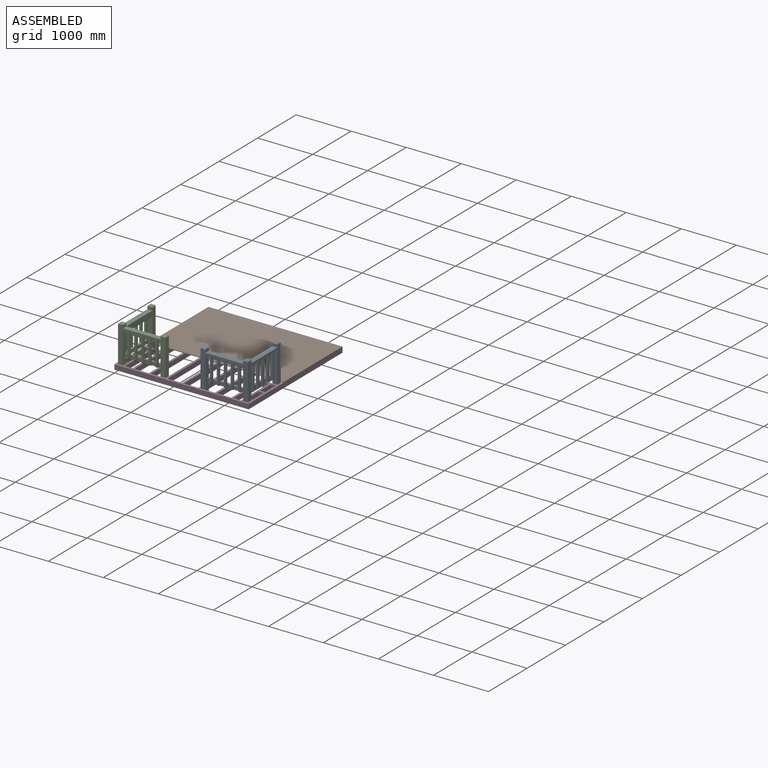
[diagram: assembled view]
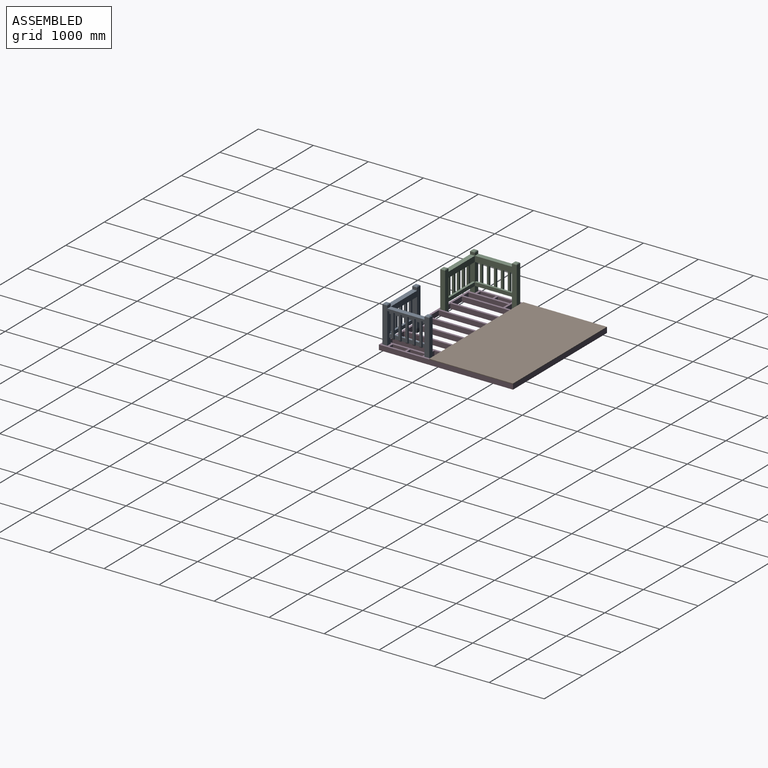
[diagram: assembled view, second angle]
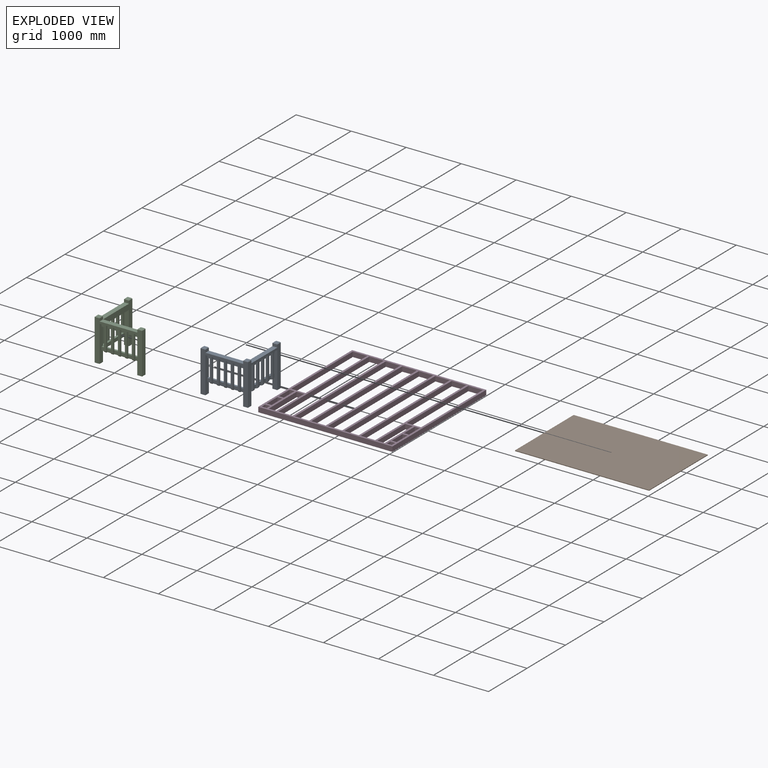
[diagram: exploded view]
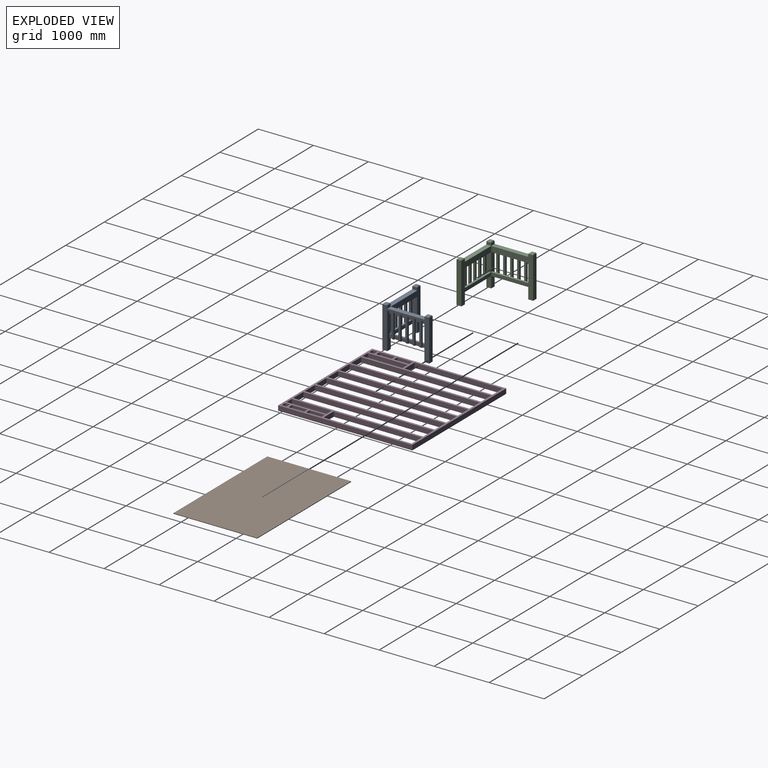
[diagram: exploded view, second angle]
ASSEMBLY  parts=4 mates=10
PART A: 116 faces, bbox 862x850.9x762 mm
  f0: plane 69.06x63.5mm, normal (0,-1,0), area 4385.1mm2, adj f25,f56,f58,f103
  f1: plane 69.06x63.5mm, normal (0,-1,0), area 4385.1mm2, adj f2,f25,f65,f103
  f2: plane 684.21x50.8mm, normal (0,0,-1), area 27499.9mm2, adj f1,f4,f6,f8,f10,f25,f28,f31
  f3: plane 88.9x63.5mm, normal (0,-1,0), area 5645.2mm2, adj f56,f58,f99,f104
  f4: plane 88.9x63.5mm, normal (0,-1,0), area 5645.1mm2, adj f2,f65,f99,f104
  f5: plane 88.9x63.5mm, normal (0,-1,0), area 5645.2mm2, adj f56,f58,f95,f100
  f6: plane 88.9x63.5mm, normal (0,-1,0), area 5645.2mm2, adj f2,f65,f95,f100
  f7: plane 88.9x63.5mm, normal (0,-1,0), area 5645.1mm2, adj f56,f58,f91,f96
  f8: plane 88.9x63.5mm, normal (0,-1,0), area 5645.1mm2, adj f2,f65,f91,f96
  f9: plane 88.9x63.5mm, normal (0,-1,0), area 5645.1mm2, adj f56,f58,f87,f92
  f10: plane 88.9x63.5mm, normal (0,-1,0), area 5645.1mm2, adj f2,f65,f87,f92
  f11: plane 63.5x63.5mm, normal (1,0,0), area 4032.3mm2, adj f13,f24,f63,f82
  f12: plane 88.9x63.5mm, normal (1,0,0), area 5645.2mm2, adj f59,f61,f78,f83
  f13: plane 673.1x50.8mm, normal (0,0,-1), area 26935.4mm2, adj f11,f14,f17,f19,f21,f23,f24,f33
  f14: plane 88.9x63.5mm, normal (1,0,0), area 5645.1mm2, adj f13,f63,f78,f83
  f15: plane 88.9x63.5mm, normal (1,0,0), area 5645.2mm2, adj f59,f61,f67,f79
  f16: plane 63.5x63.5mm, normal (1,0,0), area 4032.2mm2, adj f23,f59,f61,f74
  f17: plane 88.9x63.5mm, normal (1,0,0), area 5645.2mm2, adj f13,f63,f70,f75
  f18: plane 88.9x63.5mm, normal (1,0,0), area 5645.2mm2, adj f59,f61,f70,f75
  f19: plane 88.9x63.5mm, normal (1,0,0), area 5645.2mm2, adj f13,f63,f66,f71
  f20: plane 88.9x63.5mm, normal (1,0,0), area 5645.2mm2, adj f59,f61,f66,f71
  f21: plane 88.9x63.5mm, normal (1,0,0), area 5645.2mm2, adj f13,f63,f67,f79
  f22: plane 762x749.3mm, normal (-1,0,0), area 177741.6mm2, adj f24,f27,f30,f32,f34,f37,f47,f59
  f23: plane 660.4x88.9mm, normal (0,1,0), area 53870.9mm2, adj f13,f16,f31,f33,f36,f59,f61,f62
  f24: plane 660.4x88.9mm, normal (0,-1,0), area 53870.9mm2, adj f11,f13,f22,f33,f34,f59,f60,f61
  f25: plane 660.4x88.9mm, normal (1,0,0), area 53870.9mm2, adj f0,f1,f2,f28,f30,f35,f56,f58
  f26: plane 684.21x88.9mm, normal (0,0,1), area 60826.5mm2, adj f28,f30,f40,f42
  f27: plane 673.1x88.9mm, normal (0,0,1), area 59838.6mm2, adj f22,f33,f37,f39
  f28: plane 862.01x749.3mm, normal (0,-1,0), area 159294mm2, adj f2,f25,f26,f29,f31,f33,f35,f36
  f29: plane 749.3x88.9mm, normal (-1,0,0), area 66612.8mm2, adj f28,f30,f35,f54
  f30: plane 773.11x749.3mm, normal (0,1,0), area 179576.3mm2, adj f22,f25,f26,f29,f35,f42,f55,f56
  f31: plane 660.4x88.9mm, normal (-1,0,0), area 53870.9mm2, adj f2,f23,f28,f36,f56,f57,f58,f64
  f32: plane 749.3x88.9mm, normal (0,1,0), area 66612.8mm2, adj f22,f33,f34,f45
  f33: plane 850.9x749.3mm, normal (1,0,0), area 158870.7mm2, adj f13,f23,f24,f27,f28,f32,f34,f36
  f34: plane 88.9x88.9mm, normal (0,0,-1), area 7903.2mm2, adj f22,f24,f32,f33
  f35: plane 88.9x88.9mm, normal (0,0,-1), area 7903.2mm2, adj f25,f28,f29,f30
  f36: plane 88.9x88.9mm, normal (0,0,-1), area 7903.2mm2, adj f23,f28,f31,f33
  f37: plane 88.9x50.8mm, normal (0,-1,0), area 4516.1mm2, adj f22,f27,f33,f46
  f38: plane 63.5x63.5mm, normal (0,0,1), area 4032.3mm2, adj f44,f45,f46,f47
  f39: plane 88.9x50.8mm, normal (0,1,0), area 4516.1mm2, adj f27,f33,f40,f49
  f40: plane 88.9x50.8mm, normal (-1,0,0), area 4516.1mm2, adj f26,f28,f39,f51
  f41: plane 63.5x63.5mm, normal (0,0,1), area 4032.2mm2, adj f48,f49,f50,f51
  f42: plane 88.9x50.8mm, normal (1,0,0), area 4516.1mm2, adj f26,f28,f30,f53
  f43: plane 63.5x63.5mm, normal (0,0,1), area 4032.3mm2, adj f52,f53,f54,f55
  f44: plane 88.9x12.7mm, normal (0.71,0,0.71), area 1368.6mm2, adj f33,f38,f45,f46
  f45: plane 88.9x12.7mm, normal (0,0.71,0.71), area 1368.6mm2, adj f32,f38,f44,f47
  f46: plane 88.9x12.7mm, normal (0,-0.71,0.71), area 1368.6mm2, adj f37,f38,f44,f47
  f47: plane 88.9x12.7mm, normal (-0.71,0,0.71), area 1368.6mm2, adj f22,f38,f45,f46
  f48: plane 88.9x12.7mm, normal (0.71,0,0.71), area 1368.6mm2, adj f33,f41,f49,f50
  f49: plane 88.9x12.7mm, normal (0,0.71,0.71), area 1368.6mm2, adj f39,f41,f48,f51
  f50: plane 88.9x12.7mm, normal (0,-0.71,0.71), area 1368.6mm2, adj f28,f41,f48,f51
  f51: plane 88.9x12.7mm, normal (-0.71,0,0.71), area 1368.6mm2, adj f40,f41,f49,f50
  f52: plane 88.9x12.7mm, normal (0,-0.71,0.71), area 1368.6mm2, adj f28,f43,f53,f54
  f53: plane 88.9x12.7mm, normal (0.71,0,0.71), area 1368.6mm2, adj f42,f43,f52,f55
  f54: plane 88.9x12.7mm, normal (-0.71,0,0.71), area 1368.6mm2, adj f29,f43,f52,f55
  f55: plane 88.9x12.7mm, normal (0,0.71,0.71), area 1368.6mm2, adj f30,f43,f53,f54
  f56: plane 684.21x57.15mm, normal (0,0,-1), area 29697.5mm2, adj f0,f3,f5,f7,f9,f25,f30,f31
  f57: plane 69.06x63.5mm, normal (0,-1,0), area 4385.1mm2, adj f31,f56,f58,f88
  f58: plane 684.21x38.1mm, normal (0,0,1), area 26068.5mm2, adj f0,f3,f5,f7,f9,f25,f30,f31
  f59: plane 673.1x38.1mm, normal (0,0,1), area 25645.1mm2, adj f12,f15,f16,f18,f20,f22,f23,f24
  f60: plane 63.5x63.5mm, normal (1,0,0), area 4032.2mm2, adj f24,f59,f61,f82
  f61: plane 673.1x57.15mm, normal (0,0,-1), area 29274.1mm2, adj f12,f15,f16,f18,f20,f22,f23,f24
  f62: plane 63.5x63.5mm, normal (1,0,0), area 4032.3mm2, adj f13,f23,f63,f74
  f63: plane 673.1x38.1mm, normal (0,0,-1), area 25645.1mm2, adj f11,f14,f17,f19,f21,f22,f23,f24
  f64: plane 69.06x63.5mm, normal (0,-1,0), area 4385.1mm2, adj f2,f31,f65,f88
  f65: plane 684.21x38.1mm, normal (0,0,-1), area 26068.5mm2, adj f1,f4,f6,f8,f10,f25,f30,f31
  f66: plane 457.2x38.1mm, normal (0,-1,0), area 17237.9mm2, adj f13,f19,f20,f61,f68,f69,f113
  f67: plane 457.2x38.1mm, normal (0,1,0), area 17237.9mm2, adj f13,f15,f21,f61,f68,f69,f113
  f68: plane 438.15x38.1mm, normal (1,0,0), area 16693.5mm2, adj f13,f66,f67,f113
  f69: plane 330.2x38.1mm, normal (-1,0,0), area 12580.6mm2, adj f59,f63,f66,f67
  f70: plane 457.2x38.1mm, normal (0,-1,0), area 17237.9mm2, adj f13,f17,f18,f61,f72,f73,f112
  f71: plane 457.2x38.1mm, normal (0,1,0), area 17237.9mm2, adj f13,f19,f20,f61,f72,f73,f112
  f72: plane 438.15x38.1mm, normal (1,0,0), area 16693.5mm2, adj f13,f70,f71,f112
  f73: plane 330.2x38.1mm, normal (-1,0,0), area 12580.6mm2, adj f59,f63,f70,f71
  f74: plane 457.2x38.1mm, normal (0,-1,0), area 17237.9mm2, adj f13,f16,f61,f62,f76,f77,f111
  f75: plane 457.2x38.1mm, normal (0,1,0), area 17237.9mm2, adj f13,f17,f18,f61,f76,f77,f111
  f76: plane 438.15x38.1mm, normal (1,0,0), area 16693.5mm2, adj f13,f74,f75,f111
  f77: plane 330.2x38.1mm, normal (-1,0,0), area 12580.6mm2, adj f59,f63,f74,f75
  f78: plane 457.2x38.1mm, normal (0,1,0), area 17237.9mm2, adj f12,f13,f14,f61,f80,f81,f114
  f79: plane 457.2x38.1mm, normal (0,-1,0), area 17237.9mm2, adj f13,f15,f21,f61,f80,f81,f114
  f80: plane 438.15x38.1mm, normal (1,0,0), area 16693.5mm2, adj f13,f78,f79,f114
  f81: plane 330.2x38.1mm, normal (-1,0,0), area 12580.6mm2, adj f59,f63,f78,f79
  f82: plane 457.2x38.1mm, normal (0,1,0), area 17237.9mm2, adj f11,f13,f60,f61,f84,f85,f115
  f83: plane 457.2x38.1mm, normal (0,-1,0), area 17237.9mm2, adj f12,f13,f14,f61,f84,f85,f115
  f84: plane 438.15x38.1mm, normal (1,0,0), area 16693.5mm2, adj f13,f82,f83,f115
  f85: plane 330.2x38.1mm, normal (-1,0,0), area 12580.6mm2, adj f59,f63,f82,f83
  f86: plane 330.2x38.1mm, normal (0,1,0), area 12580.6mm2, adj f58,f65,f87,f88
  f87: plane 457.2x38.1mm, normal (-1,0,0), area 17237.9mm2, adj f2,f9,f10,f56,f86,f89,f110
  f88: plane 457.2x38.1mm, normal (1,0,0), area 17237.9mm2, adj f2,f56,f57,f64,f86,f89,f110
  f89: plane 438.15x38.1mm, normal (0,-1,0), area 16693.5mm2, adj f2,f87,f88,f110
  f90: plane 330.2x38.1mm, normal (0,1,0), area 12580.6mm2, adj f58,f65,f91,f92
  f91: plane 457.2x38.1mm, normal (-1,0,0), area 17237.9mm2, adj f2,f7,f8,f56,f90,f93,f109
  f92: plane 457.2x38.1mm, normal (1,0,0), area 17237.9mm2, adj f2,f9,f10,f56,f90,f93,f109
  f93: plane 438.15x38.1mm, normal (0,-1,0), area 16693.5mm2, adj f2,f91,f92,f109
  f94: plane 330.2x38.1mm, normal (0,1,0), area 12580.6mm2, adj f58,f65,f95,f96
  f95: plane 457.2x38.1mm, normal (-1,0,0), area 17237.9mm2, adj f2,f5,f6,f56,f94,f97,f108
  f96: plane 457.2x38.1mm, normal (1,0,0), area 17237.9mm2, adj f2,f7,f8,f56,f94,f97,f108
  f97: plane 438.15x38.1mm, normal (0,-1,0), area 16693.5mm2, adj f2,f95,f96,f108
  f98: plane 330.2x38.1mm, normal (0,1,0), area 12580.6mm2, adj f58,f65,f99,f100
  f99: plane 457.2x38.1mm, normal (-1,0,0), area 17237.9mm2, adj f2,f3,f4,f56,f98,f101,f107
  f100: plane 457.2x38.1mm, normal (1,0,0), area 17237.9mm2, adj f2,f5,f6,f56,f98,f101,f107
  f101: plane 438.15x38.1mm, normal (0,-1,0), area 16693.5mm2, adj f2,f99,f100,f107
  f102: plane 330.2x38.1mm, normal (0,1,0), area 12580.6mm2, adj f58,f65,f103,f104
  f103: plane 457.2x38.1mm, normal (-1,0,0), area 17237.9mm2, adj f0,f1,f2,f56,f102,f105,f106
  f104: plane 457.2x38.1mm, normal (1,0,0), area 17237.9mm2, adj f2,f3,f4,f56,f102,f105,f106
  f105: plane 438.15x38.1mm, normal (0,-1,0), area 16693.5mm2, adj f2,f103,f104,f106
  f106: plane 38.1x19.05mm, normal (0,-0.71,-0.71), area 1026.4mm2, adj f56,f103,f104,f105
  f107: plane 38.1x19.05mm, normal (0,-0.71,-0.71), area 1026.4mm2, adj f56,f99,f100,f101
  f108: plane 38.1x19.05mm, normal (0,-0.71,-0.71), area 1026.4mm2, adj f56,f95,f96,f97
  f109: plane 38.1x19.05mm, normal (0,-0.71,-0.71), area 1026.4mm2, adj f56,f91,f92,f93
  f110: plane 38.1x19.05mm, normal (0,-0.71,-0.71), area 1026.4mm2, adj f56,f87,f88,f89
  f111: plane 38.1x19.05mm, normal (0.71,0,-0.71), area 1026.4mm2, adj f61,f74,f75,f76
  f112: plane 38.1x19.05mm, normal (0.71,0,-0.71), area 1026.4mm2, adj f61,f70,f71,f72
  f113: plane 38.1x19.05mm, normal (0.71,0,-0.71), area 1026.4mm2, adj f61,f66,f67,f68
  f114: plane 38.1x19.05mm, normal (0.71,0,-0.71), area 1026.4mm2, adj f61,f78,f79,f80
  f115: plane 38.1x19.05mm, normal (0.71,0,-0.71), area 1026.4mm2, adj f61,f82,f83,f84
PART B: 6 faces, bbox 2438.4x1524x11.9 mm
  f0: plane 2438.4x11.91mm, normal (0,-1,0), area 29032.2mm2, adj f1,f3,f4,f5
  f1: plane 1524x11.91mm, normal (1,0,0), area 18145.1mm2, adj f0,f2,f4,f5
  f2: plane 2438.4x11.91mm, normal (0,1,0), area 29032.2mm2, adj f1,f3,f4,f5
  f3: plane 1524x11.91mm, normal (-1,0,0), area 18145.1mm2, adj f0,f2,f4,f5
  f4: plane 2438.4x1524mm, normal (0,0,1), area 3716121.6mm2, adj f0,f1,f2,f3
  f5: plane 2438.4x1524mm, normal (0,0,-1), area 3716121.6mm2, adj f0,f1,f2,f3
PART C: 116 faces, bbox 862x850.9x762 mm
  f0: plane 69.06x63.5mm, normal (0,-1,0), area 4385.1mm2, adj f25,f56,f58,f103
  f1: plane 69.06x63.5mm, normal (0,-1,0), area 4385.1mm2, adj f2,f25,f65,f103
  f2: plane 684.21x50.8mm, normal (0,0,-1), area 27499.9mm2, adj f1,f4,f6,f8,f10,f25,f28,f31
  f3: plane 88.9x63.5mm, normal (0,-1,0), area 5645.2mm2, adj f56,f58,f99,f104
  f4: plane 88.9x63.5mm, normal (0,-1,0), area 5645.2mm2, adj f2,f65,f99,f104
  f5: plane 88.9x63.5mm, normal (0,-1,0), area 5645.2mm2, adj f56,f58,f95,f100
  f6: plane 88.9x63.5mm, normal (0,-1,0), area 5645.2mm2, adj f2,f65,f95,f100
  f7: plane 88.9x63.5mm, normal (0,-1,0), area 5645.1mm2, adj f56,f58,f91,f96
  f8: plane 88.9x63.5mm, normal (0,-1,0), area 5645.1mm2, adj f2,f65,f91,f96
  f9: plane 88.9x63.5mm, normal (0,-1,0), area 5645.1mm2, adj f56,f58,f87,f92
  f10: plane 88.9x63.5mm, normal (0,-1,0), area 5645.1mm2, adj f2,f65,f87,f92
  f11: plane 63.5x63.5mm, normal (-1,0,0), area 4032.3mm2, adj f13,f24,f63,f82
  f12: plane 88.9x63.5mm, normal (-1,0,0), area 5645.2mm2, adj f59,f61,f78,f83
  f13: plane 673.1x50.8mm, normal (0,0,-1), area 26935.4mm2, adj f11,f14,f17,f19,f21,f23,f24,f33
  f14: plane 88.9x63.5mm, normal (-1,0,0), area 5645.1mm2, adj f13,f63,f78,f83
  f15: plane 88.9x63.5mm, normal (-1,0,0), area 5645.2mm2, adj f59,f61,f67,f79
  f16: plane 63.5x63.5mm, normal (-1,0,0), area 4032.2mm2, adj f23,f59,f61,f74
  f17: plane 88.9x63.5mm, normal (-1,0,0), area 5645.2mm2, adj f13,f63,f70,f75
  f18: plane 88.9x63.5mm, normal (-1,0,0), area 5645.2mm2, adj f59,f61,f70,f75
  f19: plane 88.9x63.5mm, normal (-1,0,0), area 5645.2mm2, adj f13,f63,f66,f71
  f20: plane 88.9x63.5mm, normal (-1,0,0), area 5645.2mm2, adj f59,f61,f66,f71
  f21: plane 88.9x63.5mm, normal (-1,0,0), area 5645.2mm2, adj f13,f63,f67,f79
  f22: plane 762x749.3mm, normal (1,0,0), area 177741.6mm2, adj f24,f27,f30,f32,f34,f37,f47,f59
  f23: plane 660.4x88.9mm, normal (0,1,0), area 53870.9mm2, adj f13,f16,f31,f33,f36,f59,f61,f62
  f24: plane 660.4x88.9mm, normal (0,-1,0), area 53870.9mm2, adj f11,f13,f22,f33,f34,f59,f60,f61
  f25: plane 660.4x88.9mm, normal (-1,0,0), area 53870.9mm2, adj f0,f1,f2,f28,f30,f35,f56,f58
  f26: plane 684.21x88.9mm, normal (0,0,1), area 60826.5mm2, adj f28,f30,f40,f42
  f27: plane 673.1x88.9mm, normal (0,0,1), area 59838.6mm2, adj f22,f33,f37,f39
  f28: plane 862.01x749.3mm, normal (0,-1,0), area 159294mm2, adj f2,f25,f26,f29,f31,f33,f35,f36
  f29: plane 749.3x88.9mm, normal (1,0,0), area 66612.8mm2, adj f28,f30,f35,f54
  f30: plane 773.11x749.3mm, normal (0,1,0), area 179576.3mm2, adj f22,f25,f26,f29,f35,f42,f55,f56
  f31: plane 660.4x88.9mm, normal (1,0,0), area 53870.9mm2, adj f2,f23,f28,f36,f56,f57,f58,f64
  f32: plane 749.3x88.9mm, normal (0,1,0), area 66612.8mm2, adj f22,f33,f34,f45
  f33: plane 850.9x749.3mm, normal (-1,0,0), area 158870.7mm2, adj f13,f23,f24,f27,f28,f32,f34,f36
  f34: plane 88.9x88.9mm, normal (0,0,-1), area 7903.2mm2, adj f22,f24,f32,f33
  f35: plane 88.9x88.9mm, normal (0,0,-1), area 7903.2mm2, adj f25,f28,f29,f30
  f36: plane 88.9x88.9mm, normal (0,0,-1), area 7903.2mm2, adj f23,f28,f31,f33
  f37: plane 88.9x50.8mm, normal (0,-1,0), area 4516.1mm2, adj f22,f27,f33,f46
  f38: plane 63.5x63.5mm, normal (0,0,1), area 4032.3mm2, adj f44,f45,f46,f47
  f39: plane 88.9x50.8mm, normal (0,1,0), area 4516.1mm2, adj f27,f33,f40,f49
  f40: plane 88.9x50.8mm, normal (1,0,0), area 4516.1mm2, adj f26,f28,f39,f51
  f41: plane 63.5x63.5mm, normal (0,0,1), area 4032.2mm2, adj f48,f49,f50,f51
  f42: plane 88.9x50.8mm, normal (-1,0,0), area 4516.1mm2, adj f26,f28,f30,f53
  f43: plane 63.5x63.5mm, normal (0,0,1), area 4032.3mm2, adj f52,f53,f54,f55
  f44: plane 88.9x12.7mm, normal (-0.71,0,0.71), area 1368.6mm2, adj f33,f38,f45,f46
  f45: plane 88.9x12.7mm, normal (0,0.71,0.71), area 1368.6mm2, adj f32,f38,f44,f47
  f46: plane 88.9x12.7mm, normal (0,-0.71,0.71), area 1368.6mm2, adj f37,f38,f44,f47
  f47: plane 88.9x12.7mm, normal (0.71,0,0.71), area 1368.6mm2, adj f22,f38,f45,f46
  f48: plane 88.9x12.7mm, normal (-0.71,0,0.71), area 1368.6mm2, adj f33,f41,f49,f50
  f49: plane 88.9x12.7mm, normal (0,0.71,0.71), area 1368.6mm2, adj f39,f41,f48,f51
  f50: plane 88.9x12.7mm, normal (0,-0.71,0.71), area 1368.6mm2, adj f28,f41,f48,f51
  f51: plane 88.9x12.7mm, normal (0.71,0,0.71), area 1368.6mm2, adj f40,f41,f49,f50
  f52: plane 88.9x12.7mm, normal (0,-0.71,0.71), area 1368.6mm2, adj f28,f43,f53,f54
  f53: plane 88.9x12.7mm, normal (-0.71,0,0.71), area 1368.6mm2, adj f42,f43,f52,f55
  f54: plane 88.9x12.7mm, normal (0.71,0,0.71), area 1368.6mm2, adj f29,f43,f52,f55
  f55: plane 88.9x12.7mm, normal (0,0.71,0.71), area 1368.6mm2, adj f30,f43,f53,f54
  f56: plane 684.21x57.15mm, normal (0,0,-1), area 29697.5mm2, adj f0,f3,f5,f7,f9,f25,f30,f31
  f57: plane 69.06x63.5mm, normal (0,-1,0), area 4385.1mm2, adj f31,f56,f58,f88
  f58: plane 684.21x38.1mm, normal (0,0,1), area 26068.5mm2, adj f0,f3,f5,f7,f9,f25,f30,f31
  f59: plane 673.1x38.1mm, normal (0,0,1), area 25645.1mm2, adj f12,f15,f16,f18,f20,f22,f23,f24
  f60: plane 63.5x63.5mm, normal (-1,0,0), area 4032.2mm2, adj f24,f59,f61,f82
  f61: plane 673.1x57.15mm, normal (0,0,-1), area 29274.1mm2, adj f12,f15,f16,f18,f20,f22,f23,f24
  f62: plane 63.5x63.5mm, normal (-1,0,0), area 4032.3mm2, adj f13,f23,f63,f74
  f63: plane 673.1x38.1mm, normal (0,0,-1), area 25645.1mm2, adj f11,f14,f17,f19,f21,f22,f23,f24
  f64: plane 69.06x63.5mm, normal (0,-1,0), area 4385.1mm2, adj f2,f31,f65,f88
  f65: plane 684.21x38.1mm, normal (0,0,-1), area 26068.5mm2, adj f1,f4,f6,f8,f10,f25,f30,f31
  f66: plane 457.2x38.1mm, normal (0,-1,0), area 17237.9mm2, adj f13,f19,f20,f61,f68,f69,f113
  f67: plane 457.2x38.1mm, normal (0,1,0), area 17237.9mm2, adj f13,f15,f21,f61,f68,f69,f113
  f68: plane 438.15x38.1mm, normal (-1,0,0), area 16693.5mm2, adj f13,f66,f67,f113
  f69: plane 330.2x38.1mm, normal (1,0,0), area 12580.6mm2, adj f59,f63,f66,f67
  f70: plane 457.2x38.1mm, normal (0,-1,0), area 17237.9mm2, adj f13,f17,f18,f61,f72,f73,f112
  f71: plane 457.2x38.1mm, normal (0,1,0), area 17237.9mm2, adj f13,f19,f20,f61,f72,f73,f112
  f72: plane 438.15x38.1mm, normal (-1,0,0), area 16693.5mm2, adj f13,f70,f71,f112
  f73: plane 330.2x38.1mm, normal (1,0,0), area 12580.6mm2, adj f59,f63,f70,f71
  f74: plane 457.2x38.1mm, normal (0,-1,0), area 17237.9mm2, adj f13,f16,f61,f62,f76,f77,f111
  f75: plane 457.2x38.1mm, normal (0,1,0), area 17237.9mm2, adj f13,f17,f18,f61,f76,f77,f111
  f76: plane 438.15x38.1mm, normal (-1,0,0), area 16693.5mm2, adj f13,f74,f75,f111
  f77: plane 330.2x38.1mm, normal (1,0,0), area 12580.6mm2, adj f59,f63,f74,f75
  f78: plane 457.2x38.1mm, normal (0,1,0), area 17237.9mm2, adj f12,f13,f14,f61,f80,f81,f114
  f79: plane 457.2x38.1mm, normal (0,-1,0), area 17237.9mm2, adj f13,f15,f21,f61,f80,f81,f114
  f80: plane 438.15x38.1mm, normal (-1,0,0), area 16693.5mm2, adj f13,f78,f79,f114
  f81: plane 330.2x38.1mm, normal (1,0,0), area 12580.6mm2, adj f59,f63,f78,f79
  f82: plane 457.2x38.1mm, normal (0,1,0), area 17237.9mm2, adj f11,f13,f60,f61,f84,f85,f115
  f83: plane 457.2x38.1mm, normal (0,-1,0), area 17237.9mm2, adj f12,f13,f14,f61,f84,f85,f115
  f84: plane 438.15x38.1mm, normal (-1,0,0), area 16693.5mm2, adj f13,f82,f83,f115
  f85: plane 330.2x38.1mm, normal (1,0,0), area 12580.6mm2, adj f59,f63,f82,f83
  f86: plane 330.2x38.1mm, normal (0,1,0), area 12580.6mm2, adj f58,f65,f87,f88
  f87: plane 457.2x38.1mm, normal (1,0,0), area 17237.9mm2, adj f2,f9,f10,f56,f86,f89,f110
  f88: plane 457.2x38.1mm, normal (-1,0,0), area 17237.9mm2, adj f2,f56,f57,f64,f86,f89,f110
  f89: plane 438.15x38.1mm, normal (0,-1,0), area 16693.5mm2, adj f2,f87,f88,f110
  f90: plane 330.2x38.1mm, normal (0,1,0), area 12580.6mm2, adj f58,f65,f91,f92
  f91: plane 457.2x38.1mm, normal (1,0,0), area 17237.9mm2, adj f2,f7,f8,f56,f90,f93,f109
  f92: plane 457.2x38.1mm, normal (-1,0,0), area 17237.9mm2, adj f2,f9,f10,f56,f90,f93,f109
  f93: plane 438.15x38.1mm, normal (0,-1,0), area 16693.5mm2, adj f2,f91,f92,f109
  f94: plane 330.2x38.1mm, normal (0,1,0), area 12580.6mm2, adj f58,f65,f95,f96
  f95: plane 457.2x38.1mm, normal (1,0,0), area 17237.9mm2, adj f2,f5,f6,f56,f94,f97,f108
  f96: plane 457.2x38.1mm, normal (-1,0,0), area 17237.9mm2, adj f2,f7,f8,f56,f94,f97,f108
  f97: plane 438.15x38.1mm, normal (0,-1,0), area 16693.5mm2, adj f2,f95,f96,f108
  f98: plane 330.2x38.1mm, normal (0,1,0), area 12580.6mm2, adj f58,f65,f99,f100
  f99: plane 457.2x38.1mm, normal (1,0,0), area 17237.9mm2, adj f2,f3,f4,f56,f98,f101,f107
  f100: plane 457.2x38.1mm, normal (-1,0,0), area 17237.9mm2, adj f2,f5,f6,f56,f98,f101,f107
  f101: plane 438.15x38.1mm, normal (0,-1,0), area 16693.5mm2, adj f2,f99,f100,f107
  f102: plane 330.2x38.1mm, normal (0,1,0), area 12580.6mm2, adj f58,f65,f103,f104
  f103: plane 457.2x38.1mm, normal (1,0,0), area 17237.9mm2, adj f0,f1,f2,f56,f102,f105,f106
  f104: plane 457.2x38.1mm, normal (-1,0,0), area 17237.9mm2, adj f2,f3,f4,f56,f102,f105,f106
  f105: plane 438.15x38.1mm, normal (0,-1,0), area 16693.5mm2, adj f2,f103,f104,f106
  f106: plane 38.1x19.05mm, normal (0,-0.71,-0.71), area 1026.4mm2, adj f56,f103,f104,f105
  f107: plane 38.1x19.05mm, normal (0,-0.71,-0.71), area 1026.4mm2, adj f56,f99,f100,f101
  f108: plane 38.1x19.05mm, normal (0,-0.71,-0.71), area 1026.4mm2, adj f56,f95,f96,f97
  f109: plane 38.1x19.05mm, normal (0,-0.71,-0.71), area 1026.4mm2, adj f56,f91,f92,f93
  f110: plane 38.1x19.05mm, normal (0,-0.71,-0.71), area 1026.4mm2, adj f56,f87,f88,f89
  f111: plane 38.1x19.05mm, normal (-0.71,0,-0.71), area 1026.4mm2, adj f61,f74,f75,f76
  f112: plane 38.1x19.05mm, normal (-0.71,0,-0.71), area 1026.4mm2, adj f61,f70,f71,f72
  f113: plane 38.1x19.05mm, normal (-0.71,0,-0.71), area 1026.4mm2, adj f61,f66,f67,f68
  f114: plane 38.1x19.05mm, normal (-0.71,0,-0.71), area 1026.4mm2, adj f61,f78,f79,f80
  f115: plane 38.1x19.05mm, normal (-0.71,0,-0.71), area 1026.4mm2, adj f61,f82,f83,f84
PART D: 70 faces, bbox 2438.4x2438.4x88.9 mm
  f0: plane 88.9x88.9mm, normal (0,1,0), area 7903.2mm2, adj f1,f67,f68,f69
  f1: plane 279.4x88.9mm, normal (1,0,0), area 24838.7mm2, adj f0,f2,f68,f69
  f2: plane 88.9x88.9mm, normal (0,-1,0), area 7903.2mm2, adj f1,f67,f68,f69
  f3: plane 88.9x88.9mm, normal (0,1,0), area 7903.2mm2, adj f4,f51,f68,f69
  f4: plane 279.4x88.9mm, normal (1,0,0), area 24838.7mm2, adj f3,f5,f68,f69
  f5: plane 88.9x88.9mm, normal (0,-1,0), area 7903.2mm2, adj f4,f51,f68,f69
  f6: plane 279.4x88.9mm, normal (1,0,0), area 24838.7mm2, adj f7,f52,f68,f69
  f7: plane 88.9x88.9mm, normal (0,-1,0), area 7903.2mm2, adj f6,f8,f68,f69
  f8: plane 279.4x88.9mm, normal (-1,0,0), area 24838.7mm2, adj f7,f52,f68,f69
  f9: plane 1600.2x88.9mm, normal (-1,0,0), area 142257.8mm2, adj f10,f53,f68,f69
  f10: plane 261.94x88.9mm, normal (0,1,0), area 23286.2mm2, adj f9,f11,f68,f69
  f11: plane 1600.2x88.9mm, normal (1,0,0), area 142257.8mm2, adj f10,f53,f68,f69
  f12: plane 261.94x88.9mm, normal (0,-1,0), area 23286.2mm2, adj f13,f54,f68,f69
  f13: plane 2362.2x88.9mm, normal (-1,0,0), area 209999.6mm2, adj f12,f14,f68,f69
  f14: plane 261.94x88.9mm, normal (0,1,0), area 23286.2mm2, adj f13,f54,f68,f69
  f15: plane 261.94x88.9mm, normal (0,-1,0), area 23286.2mm2, adj f16,f55,f68,f69
  f16: plane 2362.2x88.9mm, normal (-1,0,0), area 209999.6mm2, adj f15,f17,f68,f69
  f17: plane 261.94x88.9mm, normal (0,1,0), area 23286.2mm2, adj f16,f55,f68,f69
  f18: plane 261.94x88.9mm, normal (0,-1,0), area 23286.2mm2, adj f19,f56,f68,f69
  f19: plane 2362.2x88.9mm, normal (-1,0,0), area 209999.6mm2, adj f18,f20,f68,f69
  f20: plane 261.94x88.9mm, normal (0,1,0), area 23286.2mm2, adj f19,f56,f68,f69
  f21: plane 261.94x88.9mm, normal (0,1,0), area 23286.2mm2, adj f22,f57,f68,f69
  f22: plane 1600.2x88.9mm, normal (1,0,0), area 142257.8mm2, adj f21,f23,f68,f69
  f23: plane 261.94x88.9mm, normal (0,-1,0), area 23286.2mm2, adj f22,f57,f68,f69
  f24: plane 2438.4x88.9mm, normal (0,1,0), area 216773.8mm2, adj f25,f58,f68,f69
  f25: plane 2438.4x88.9mm, normal (-1,0,0), area 216773.8mm2, adj f24,f26,f68,f69
  f26: plane 2438.4x88.9mm, normal (0,-1,0), area 216773.8mm2, adj f25,f58,f68,f69
  f27: plane 88.9x88.9mm, normal (0,-1,0), area 7903.2mm2, adj f28,f59,f68,f69
  f28: plane 88.9x88.9mm, normal (-1,0,0), area 7903.2mm2, adj f27,f29,f68,f69
  f29: plane 88.9x88.9mm, normal (0,1,0), area 7903.2mm2, adj f28,f59,f68,f69
  f30: plane 88.9x88.9mm, normal (0,1,0), area 7903.2mm2, adj f31,f60,f68,f69
  f31: plane 88.9x88.9mm, normal (1,0,0), area 7903.2mm2, adj f30,f32,f68,f69
  f32: plane 88.9x88.9mm, normal (0,-1,0), area 7903.2mm2, adj f31,f60,f68,f69
  f33: plane 2362.2x88.9mm, normal (1,0,0), area 209999.6mm2, adj f34,f61,f68,f69
  f34: plane 261.94x88.9mm, normal (0,-1,0), area 23286.2mm2, adj f33,f35,f68,f69
  f35: plane 2362.2x88.9mm, normal (-1,0,0), area 209999.6mm2, adj f34,f61,f68,f69
  f36: plane 723.9x88.9mm, normal (1,0,0), area 64354.7mm2, adj f37,f62,f68,f69
  f37: plane 134.94x88.9mm, normal (0,-1,0), area 11995.9mm2, adj f36,f38,f68,f69
  f38: plane 723.9x88.9mm, normal (-1,0,0), area 64354.7mm2, adj f37,f62,f68,f69
  f39: plane 2362.2x88.9mm, normal (1,0,0), area 209999.6mm2, adj f40,f63,f68,f69
  f40: plane 261.94x88.9mm, normal (0,-1,0), area 23286.2mm2, adj f39,f41,f68,f69
  f41: plane 2362.2x88.9mm, normal (-1,0,0), area 209999.6mm2, adj f40,f63,f68,f69
  f42: plane 2362.2x88.9mm, normal (1,0,0), area 209999.6mm2, adj f43,f64,f68,f69
  f43: plane 261.94x88.9mm, normal (0,-1,0), area 23286.2mm2, adj f42,f44,f68,f69
  f44: plane 2362.2x88.9mm, normal (-1,0,0), area 209999.6mm2, adj f43,f64,f68,f69
  f45: plane 88.9x88.9mm, normal (0,1,0), area 7903.2mm2, adj f46,f65,f68,f69
  f46: plane 279.4x88.9mm, normal (1,0,0), area 24838.7mm2, adj f45,f47,f68,f69
  f47: plane 88.9x88.9mm, normal (0,-1,0), area 7903.2mm2, adj f46,f65,f68,f69
  f48: plane 134.94x88.9mm, normal (0,-1,0), area 11995.9mm2, adj f49,f66,f68,f69
  f49: plane 723.9x88.9mm, normal (-1,0,0), area 64354.7mm2, adj f48,f50,f68,f69
  f50: plane 134.94x88.9mm, normal (0,1,0), area 11995.9mm2, adj f49,f66,f68,f69
  f51: plane 279.4x88.9mm, normal (-1,0,0), area 24838.7mm2, adj f3,f5,f68,f69
  f52: plane 88.9x88.9mm, normal (0,1,0), area 7903.2mm2, adj f6,f8,f68,f69
  f53: plane 261.94x88.9mm, normal (0,-1,0), area 23286.2mm2, adj f9,f11,f68,f69
  f54: plane 2362.2x88.9mm, normal (1,0,0), area 209999.6mm2, adj f12,f14,f68,f69
  f55: plane 2362.2x88.9mm, normal (1,0,0), area 209999.6mm2, adj f15,f17,f68,f69
  f56: plane 2362.2x88.9mm, normal (1,0,0), area 209999.6mm2, adj f18,f20,f68,f69
  f57: plane 1600.2x88.9mm, normal (-1,0,0), area 142257.8mm2, adj f21,f23,f68,f69
  f58: plane 2438.4x88.9mm, normal (1,0,0), area 216773.8mm2, adj f24,f26,f68,f69
  f59: plane 88.9x88.9mm, normal (1,0,0), area 7903.2mm2, adj f27,f29,f68,f69
  f60: plane 88.9x88.9mm, normal (-1,0,0), area 7903.2mm2, adj f30,f32,f68,f69
  f61: plane 261.94x88.9mm, normal (0,1,0), area 23286.2mm2, adj f33,f35,f68,f69
  f62: plane 134.94x88.9mm, normal (0,1,0), area 11995.9mm2, adj f36,f38,f68,f69
  f63: plane 261.94x88.9mm, normal (0,1,0), area 23286.2mm2, adj f39,f41,f68,f69
  f64: plane 261.94x88.9mm, normal (0,1,0), area 23286.2mm2, adj f42,f44,f68,f69
  f65: plane 279.4x88.9mm, normal (-1,0,0), area 24838.7mm2, adj f45,f47,f68,f69
  f66: plane 723.9x88.9mm, normal (1,0,0), area 64354.7mm2, adj f48,f50,f68,f69
  f67: plane 279.4x88.9mm, normal (-1,0,0), area 24838.7mm2, adj f0,f2,f68,f69
  f68: plane 2438.4x2438.4mm, normal (0,0,1), area 1084473.6mm2, adj f0,f1,f2,f3,f4,f5,f6,f7
  f69: plane 2438.4x2438.4mm, normal (0,0,-1), area 1084473.6mm2, adj f0,f1,f2,f3,f4,f5,f6,f7
PLACE A at identity
PLACE B at identity
PLACE C at identity
PLACE D at identity
MATE planar D.f60 <-> A.f33  axis (-1,0,0) through (2400.3,82.55,44.45)mm
MATE planar C.f33 <-> D.f59  axis (-1,0,0) through (38.1,127,0)mm
MATE planar B.f3 <-> D.f25  axis (-1,0,0) through (0,1676.4,94.85)mm
MATE planar D.f29 <-> C.f28  axis (0,1,0) through (82.55,38.1,44.45)mm
MATE planar C.f36 <-> D.f69  axis (0,0,-1) through (82.55,82.55,0)mm
MATE planar B.f5 <-> D.f68  axis (0,0,-1) through (1219.2,1676.4,88.9)mm
MATE planar A.f28 <-> D.f30  axis (0,-1,0) through (2400.3,38.1,374.65)mm
MATE planar C.f36 <-> D.f69  axis (0,0,-1) through (82.55,127,0)mm
MATE planar D.f69 <-> A.f36  axis (0,0,-1) through (2273.3,38.1,0)mm
MATE planar D.f24 <-> B.f2  axis (0,1,0) through (1219.2,2438.4,44.45)mm
